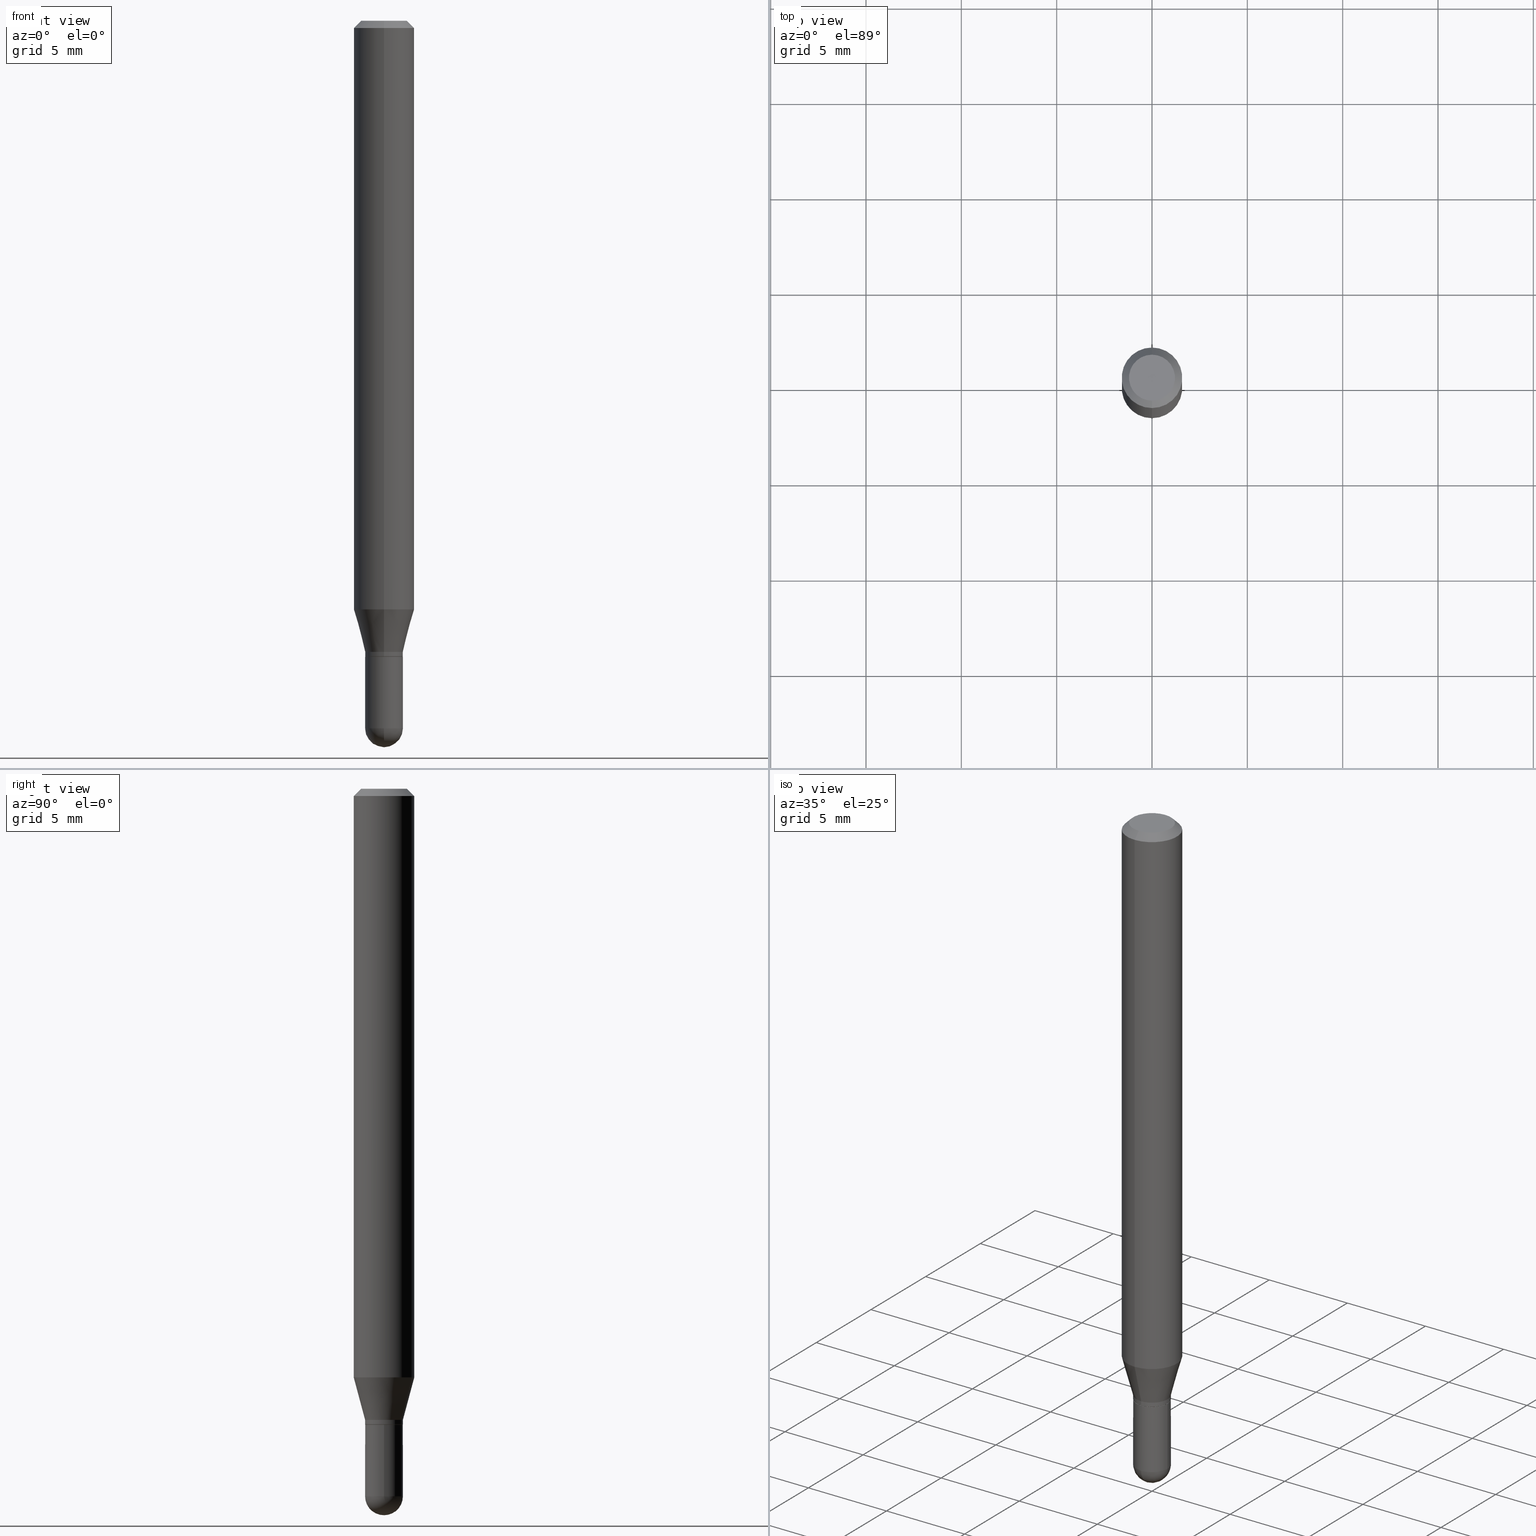
[diagram: canonical four-view strip — front | top / right | iso, engineering-drawing reading convention]
A machine part, canonical four-view strip (front | top / right | iso — engineering-drawing reading convention). The complete STEP part file that produces these views, byte-faithful:
ISO-10303-21;
HEADER;
FILE_DESCRIPTION (( 'STEP AP203' ),
    '1' );
FILE_NAME ('39510.STEP',
    '2024-03-08T12:51:19',
    ( '' ),
    ( '' ),
    'SwSTEP 2.0',
    'SolidWorks 2023',
    '' );
FILE_SCHEMA (( 'CONFIG_CONTROL_DESIGN' ));
ENDSEC;

DATA;
#1 = LINE ( 'NONE', #320, #234 ) ;
#2 = CIRCLE ( 'NONE', #132, 0.03905000000000000832 ) ;
#3 = VECTOR ( 'NONE', #270, 39.37007874015748143 ) ;
#4 = EDGE_LOOP ( 'NONE', ( #389, #180, #359, #393, #220 ) ) ;
#5 = CYLINDRICAL_SURFACE ( 'NONE', #29, 0.06250000000000001388 ) ;
#6 = DIRECTION ( 'NONE',  ( -2.445707618412851454E-29, 3.491139346140710505E-15, 1.000000000000000000 ) ) ;
#7 = DIRECTION ( 'NONE',  ( 2.445707618412850893E-29, -3.491139346140710505E-15, -1.000000000000000000 ) ) ;
#8 = CARTESIAN_POINT ( 'NONE',  ( 3.211214102976074369E-29, -4.583865961482754014E-15, -1.313000000000000389 ) ) ;
#9 = CARTESIAN_POINT ( 'NONE',  ( 3.572707652396175485E-29, -5.100879661982893620E-15, -1.460950000000000193 ) ) ;
#10 = PRODUCT_RELATED_PRODUCT_CATEGORY ( 'detail', '', ( #209 ) ) ;
#11 = ORIENTED_EDGE ( 'NONE', *, *, #112, .F. ) ;
#12 = AXIS2_PLACEMENT_3D ( 'NONE', #53, #439, #14 ) ;
#13 = PERSON_AND_ORGANIZATION_ROLE ( 'design_owner' ) ;
#14 = DIRECTION ( 'NONE',  ( -6.982962677686265922E-15, -1.000000000000000000, 3.483106191921934765E-15 ) ) ;
#15 = ADVANCED_FACE ( 'NONE', ( #129 ), #119, .T. ) ;
#16 = CALENDAR_DATE ( 2024, 8, 3 ) ;
#17 = CC_DESIGN_PERSON_AND_ORGANIZATION_ASSIGNMENT ( #479, #62, ( #483 ) ) ;
#18 = PLANE ( 'NONE',  #417 ) ;
#19 = CARTESIAN_POINT ( 'NONE',  ( -2.726846925636188894E-16, -0.03905000000000491411, -1.312500000000000222 ) ) ;
#20 = CIRCLE ( 'NONE', #318, 0.03855000000000000093 ) ;
#21 = APPROVAL_DATE_TIME ( #382, #332 ) ;
#22 = ADVANCED_FACE ( 'NONE', ( #290 ), #215, .T. ) ;
#23 = SECURITY_CLASSIFICATION_LEVEL ( 'unclassified' ) ;
#24 = DIRECTION ( 'NONE',  ( -6.982962677686265922E-15, -1.000000000000000000, 3.491139346140710505E-15 ) ) ;
#25 = EDGE_CURVE ( 'NONE', #353, #141, #354, .T. ) ;
#26 = ORIENTED_EDGE ( 'NONE', *, *, #90, .T. ) ;
#27 = PERSON_AND_ORGANIZATION_ROLE ( 'classification_officer' ) ;
#28 = VECTOR ( 'NONE', #447, 39.37007874015748854 ) ;
#29 = AXIS2_PLACEMENT_3D ( 'NONE', #475, #444, #159 ) ;
#30 = COORDINATED_UNIVERSAL_TIME_OFFSET ( 5, 0, .BEHIND. ) ;
#31 = MANIFOLD_SOLID_BREP ( 'Body-Move/Copy2[2]', #170 ) ;
#32 = DIRECTION ( 'NONE',  ( 1.000000000000000000, -6.982962677686265922E-15, 4.883557194083112340E-29 ) ) ;
#33 = ORIENTED_EDGE ( 'NONE', *, *, #254, .F. ) ;
#34 = DIRECTION ( 'NONE',  ( -2.445707618412851174E-29, 3.491139346140710505E-15, 1.000000000000000000 ) ) ;
#35 = VERTEX_POINT ( 'NONE', #242 ) ;
#36 = CARTESIAN_POINT ( 'NONE',  ( 2.726846925636807657E-16, 0.03904999999999541477, -1.313000000000000167 ) ) ;
#37 = AXIS2_PLACEMENT_3D ( 'NONE', #160, #249, #48 ) ;
#38 = CONICAL_SURFACE ( 'NONE', #397, 0.06250000000000001388, 0.7853981633974473908 ) ;
#39 = EDGE_LOOP ( 'NONE', ( #113, #98, #432, #297 ) ) ;
#40 = FACE_OUTER_BOUND ( 'NONE', #277, .T. ) ;
#41 = EDGE_CURVE ( 'NONE', #237, #91, #473, .T. ) ;
#42 = ORIENTED_EDGE ( 'NONE', *, *, #202, .T. ) ;
#43 = DIRECTION ( 'NONE',  ( -6.982962677686265922E-15, -1.000000000000000000, 0.000000000000000000 ) ) ;
#44 = FACE_OUTER_BOUND ( 'NONE', #419, .T. ) ;
#45 = EDGE_LOOP ( 'NONE', ( #263, #503, #69, #63 ) ) ;
#46 = CONICAL_SURFACE ( 'NONE', #107, 0.06250000000000001388, 0.7853981633974473908 ) ;
#47 = CARTESIAN_POINT ( 'NONE',  ( 3.316907271900979054E-16, 0.04750000000000004219, -5.575146080993514890E-16 ) ) ;
#48 = DIRECTION ( 'NONE',  ( 1.000000000000000000, -6.982962677686265133E-15, 0.000000000000000000 ) ) ;
#49 = CARTESIAN_POINT ( 'NONE',  ( 3.572707652396175485E-29, -5.100879661982893620E-15, -1.460950000000000193 ) ) ;
#50 = CARTESIAN_POINT ( 'NONE',  ( 3.607780740822223794E-16, 0.03904999999999564375, -1.303000000000000380 ) ) ;
#51 = DIRECTION ( 'NONE',  ( -2.445707618412851174E-29, 3.491139346140710505E-15, 1.000000000000000000 ) ) ;
#52 = DIRECTION ( 'NONE',  ( 0.000000000000000000, 0.000000000000000000, 1.000000000000000000 ) ) ;
#53 = CARTESIAN_POINT ( 'NONE',  ( 3.668561427619468125E-31, -5.236709019211339271E-17, -0.01500000000000078354 ) ) ;
#54 = FACE_OUTER_BOUND ( 'NONE', #351, .T. ) ;
#55 = APPROVAL_STATUS ( 'not_yet_approved' ) ;
#56 = DIRECTION ( 'NONE',  ( -6.982962677686265133E-15, -1.000000000000000000, 0.000000000000000000 ) ) ;
#57 = EDGE_CURVE ( 'NONE', #405, #488, #82, .T. ) ;
#58 = AXIS2_PLACEMENT_3D ( 'NONE', #96, #97, #498 ) ;
#59 = EDGE_CURVE ( 'NONE', #506, #308, #245, .T. ) ;
#60 = CARTESIAN_POINT ( 'NONE',  ( -4.364351673553916694E-16, -0.06250000000000001388, 2.181962091337944559E-16 ) ) ;
#61 = DATE_TIME_ROLE ( 'classification_date' ) ;
#62 = PERSON_AND_ORGANIZATION_ROLE ( 'creator' ) ;
#63 = ORIENTED_EDGE ( 'NONE', *, *, #380, .F. ) ;
#64 = EDGE_CURVE ( 'NONE', #141, #353, #185, .T. ) ;
#65 = DIRECTION ( 'NONE',  ( -6.982962677686265922E-15, -1.000000000000000000, 3.491139346140710900E-15 ) ) ;
#66 = VECTOR ( 'NONE', #232, 39.37007874015748143 ) ;
#67 = APPROVAL ( #495, 'UNSPECIFIED' ) ;
#68 = ADVANCED_FACE ( 'NONE', ( #44 ), #203, .T. ) ;
#69 = ORIENTED_EDGE ( 'NONE', *, *, #41, .F. ) ;
#70 = DIRECTION ( 'NONE',  ( 2.445707618412851174E-29, -3.491139346140710505E-15, -1.000000000000000000 ) ) ;
#71 = VERTEX_POINT ( 'NONE', #194 ) ;
#72 = CARTESIAN_POINT ( 'NONE',  ( -2.691932112247734171E-16, -0.03855000000000458060, -1.313000000000000389 ) ) ;
#73 = ORIENTED_EDGE ( 'NONE', *, *, #64, .T. ) ;
#74 = COORDINATED_UNIVERSAL_TIME_OFFSET ( 5, 0, .BEHIND. ) ;
#75 = CC_DESIGN_PERSON_AND_ORGANIZATION_ASSIGNMENT ( #455, #259, ( #483 ) ) ;
#76 = EDGE_CURVE ( 'NONE', #71, #314, #463, .T. ) ;
#77 = DIRECTION ( 'NONE',  ( 2.445707618412851174E-29, -3.491139346140710505E-15, -1.000000000000000000 ) ) ;
#78 = EDGE_CURVE ( 'NONE', #110, #184, #1, .T. ) ;
#79 = VERTEX_POINT ( 'NONE', #328 ) ;
#80 = DIRECTION ( 'NONE',  ( -6.982962677686265922E-15, -1.000000000000000000, 0.000000000000000000 ) ) ;
#81 = VERTEX_POINT ( 'NONE', #204 ) ;
#82 = LINE ( 'NONE', #331, #335 ) ;
#83 = ORIENTED_EDGE ( 'NONE', *, *, #262, .T. ) ;
#84 = VECTOR ( 'NONE', #6, 39.37007874015748143 ) ;
#85 = CC_DESIGN_PERSON_AND_ORGANIZATION_ASSIGNMENT ( #175, #407, ( #512 ) ) ;
#86 = DIRECTION ( 'NONE',  ( 1.000000000000000000, -6.982962677686266711E-15, 4.876176775795935232E-29 ) ) ;
#87 = DIRECTION ( 'NONE',  ( 1.000000000000000000, -6.982962677686266711E-15, 0.000000000000000000 ) ) ;
#88 = DIRECTION ( 'NONE',  ( -2.445468806185136597E-29, 3.491481338843145583E-15, 1.000000000000000000 ) ) ;
#89 = CARTESIAN_POINT ( 'NONE',  ( -3.773273898774342241E-16, -0.04750000000000004219, -6.175418593736515733E-16 ) ) ;
#90 = EDGE_CURVE ( 'NONE', #472, #71, #403, .T. ) ;
#91 = VERTEX_POINT ( 'NONE', #247 ) ;
#92 = CIRCLE ( 'NONE', #276, 0.06250000000000001388 ) ;
#93 = LOCAL_TIME ( 7, 51, 19.00000000000000000, #74 ) ;
#94 = DESIGN_CONTEXT ( 'detailed design', #293, 'design' ) ;
#95 = CARTESIAN_POINT ( 'NONE',  ( 0.000000000000000000, 0.000000000000000000, 0.000000000000000000 ) ) ;
#96 = CARTESIAN_POINT ( 'NONE',  ( 3.186757026791946487E-29, -4.548954568021346593E-15, -1.303000000000000380 ) ) ;
#97 = DIRECTION ( 'NONE',  ( -2.445707618412851174E-29, 3.491139346140710505E-15, 1.000000000000000000 ) ) ;
#98 = ORIENTED_EDGE ( 'NONE', *, *, #178, .T. ) ;
#99 = AXIS2_PLACEMENT_3D ( 'NONE', #136, #252, #221 ) ;
#100 = CARTESIAN_POINT ( 'NONE',  ( 0.03905000000000000832, -2.726846925636487675E-16, 1.904147030948313202E-30 ) ) ;
#101 = ORIENTED_EDGE ( 'NONE', *, *, #360, .T. ) ;
#102 = CARTESIAN_POINT ( 'NONE',  ( 3.572707652396175485E-29, -5.100879661982893620E-15, -1.460950000000000193 ) ) ;
#103 = CC_DESIGN_DATE_AND_TIME_ASSIGNMENT ( #340, #61, ( #298 ) ) ;
#104 = ORIENTED_EDGE ( 'NONE', *, *, #231, .F. ) ;
#105 = AXIS2_PLACEMENT_3D ( 'NONE', #370, #442, #87 ) ;
#106 = FACE_OUTER_BOUND ( 'NONE', #39, .T. ) ;
#107 = AXIS2_PLACEMENT_3D ( 'NONE', #431, #77, #235 ) ;
#108 = ORIENTED_EDGE ( 'NONE', *, *, #231, .T. ) ;
#109 = CARTESIAN_POINT ( 'NONE',  ( -0.03905000000000000832, 2.774669383143191817E-16, -1.920844152744540988E-30 ) ) ;
#110 = VERTEX_POINT ( 'NONE', #89 ) ;
#111 = DIRECTION ( 'NONE',  ( -6.982962677686265133E-15, -1.000000000000000000, 0.000000000000000000 ) ) ;
#112 = EDGE_CURVE ( 'NONE', #308, #184, #316, .T. ) ;
#113 = ORIENTED_EDGE ( 'NONE', *, *, #202, .F. ) ;
#114 = CARTESIAN_POINT ( 'NONE',  ( 0.000000000000000000, 0.000000000000000000, 0.000000000000000000 ) ) ;
#115 = VECTOR ( 'NONE', #496, 39.37007874015748143 ) ;
#116 = AXIS2_PLACEMENT_3D ( 'NONE', #275, #183, #269 ) ;
#117 = ORIENTED_EDGE ( 'NONE', *, *, #112, .T. ) ;
#118 = CARTESIAN_POINT ( 'NONE',  ( 3.210900542521084585E-29, -4.584314997901050598E-15, -1.313000000000000167 ) ) ;
#119 = CYLINDRICAL_SURFACE ( 'NONE', #490, 0.06250000000000001388 ) ;
#120 = SPHERICAL_SURFACE ( 'NONE', #304, 0.03905000000000012628 ) ;
#121 = CARTESIAN_POINT ( 'NONE',  ( 0.000000000000000000, 0.000000000000000000, 0.000000000000000000 ) ) ;
#122 = AXIS2_PLACEMENT_3D ( 'NONE', #118, #155, #167 ) ;
#123 = DIRECTION ( 'NONE',  ( -2.445707618412851174E-29, 3.491139346140710505E-15, 1.000000000000000000 ) ) ;
#124 = AXIS2_PLACEMENT_3D ( 'NONE', #418, #459, #24 ) ;
#125 = CARTESIAN_POINT ( 'NONE',  ( 3.569368228036930558E-29, -5.105661907733563837E-15, -1.460950000000000193 ) ) ;
#126 = DIRECTION ( 'NONE',  ( 6.982962677686265922E-15, 1.000000000000000000, -3.491139346140710505E-15 ) ) ;
#127 = DIRECTION ( 'NONE',  ( 4.937700262164543309E-15, 0.7071067811865444641, -0.7071067811865505703 ) ) ;
#128 = EDGE_CURVE ( 'NONE', #110, #506, #373, .T. ) ;
#129 = FACE_OUTER_BOUND ( 'NONE', #464, .T. ) ;
#130 = COORDINATED_UNIVERSAL_TIME_OFFSET ( 5, 0, .BEHIND. ) ;
#131 = FACE_OUTER_BOUND ( 'NONE', #344, .T. ) ;
#132 = AXIS2_PLACEMENT_3D ( 'NONE', #102, #148, #272 ) ;
#133 = LOCAL_TIME ( 7, 51, 19.00000000000000000, #130 ) ;
#134 =( NAMED_UNIT ( * ) PLANE_ANGLE_UNIT ( ) SI_UNIT ( $, .RADIAN. ) );
#135 = EDGE_CURVE ( 'NONE', #497, #35, #346, .T. ) ;
#136 = CARTESIAN_POINT ( 'NONE',  ( 3.186757026791946487E-29, -4.548954568021346593E-15, -1.303000000000000380 ) ) ;
#137 = ORIENTED_EDGE ( 'NONE', *, *, #486, .T. ) ;
#138 = CLOSED_SHELL ( 'NONE', ( #443, #219, #253, #368, #481 ) ) ;
#139 = AXIS2_PLACEMENT_3D ( 'NONE', #267, #186, #352 ) ;
#140 = ADVANCED_FACE ( 'NONE', ( #295 ), #224, .T. ) ;
#141 = VERTEX_POINT ( 'NONE', #299 ) ;
#142 = DIRECTION ( 'NONE',  ( -2.445707618412851174E-29, 3.491139346140710505E-15, 1.000000000000000000 ) ) ;
#143 = ORIENTED_EDGE ( 'NONE', *, *, #135, .T. ) ;
#144 = CARTESIAN_POINT ( 'NONE',  ( 3.569368228036930558E-29, -5.105661907733563837E-15, -1.460950000000000193 ) ) ;
#145 = EDGE_LOOP ( 'NONE', ( #511, #469, #435, #227 ) ) ;
#146 = DIRECTION ( 'NONE',  ( -6.982962677686265922E-15, -1.000000000000000000, 0.000000000000000000 ) ) ;
#147 = ORIENTED_EDGE ( 'NONE', *, *, #164, .T. ) ;
#148 = DIRECTION ( 'NONE',  ( -2.445468806185136597E-29, 3.491481338843145583E-15, 1.000000000000000000 ) ) ;
#149 = ORIENTED_EDGE ( 'NONE', *, *, #90, .F. ) ;
#150 = DATE_AND_TIME ( #311, #93 ) ;
#151 = DIRECTION ( 'NONE',  ( -6.982962677686265133E-15, -1.000000000000000000, 3.491139346140709322E-15 ) ) ;
#152 = AXIS2_PLACEMENT_3D ( 'NONE', #485, #239, #342 ) ;
#153 = AXIS2_PLACEMENT_3D ( 'NONE', #326, #210, #378 ) ;
#154 = ADVANCED_BREP_SHAPE_REPRESENTATION ( '39510', ( #190, #31, #425 ), #374 ) ;
#155 = DIRECTION ( 'NONE',  ( -2.445468806185136597E-29, 3.491481338843145583E-15, 1.000000000000000000 ) ) ;
#156 = APPROVAL ( #55, 'UNSPECIFIED' ) ;
#157 = CARTESIAN_POINT ( 'NONE',  ( 3.186757026791946487E-29, -4.548954568021346593E-15, -1.303000000000000380 ) ) ;
#158 = CARTESIAN_POINT ( 'NONE',  ( 0.000000000000000000, 0.000000000000000000, 0.000000000000000000 ) ) ;
#159 = DIRECTION ( 'NONE',  ( -6.982962677686265133E-15, -1.000000000000000000, 3.491139346140710505E-15 ) ) ;
#160 = CARTESIAN_POINT ( 'NONE',  ( 3.572707652396175485E-29, -5.100879661982893620E-15, -1.460950000000000193 ) ) ;
#161 = DIRECTION ( 'NONE',  ( -2.445468806185136597E-29, 3.491481338843145583E-15, 1.000000000000000000 ) ) ;
#162 = AXIS2_PLACEMENT_3D ( 'NONE', #288, #51, #201 ) ;
#163 = EDGE_CURVE ( 'NONE', #488, #314, #386, .T. ) ;
#164 = EDGE_CURVE ( 'NONE', #472, #488, #250, .T. ) ;
#165 = DIRECTION ( 'NONE',  ( -4.851104656540959542E-15, -0.7071067811865493491, -0.7071067811865456854 ) ) ;
#166 = AXIS2_PLACEMENT_3D ( 'NONE', #213, #379, #43 ) ;
#167 = DIRECTION ( 'NONE',  ( 1.000000000000000000, -6.982962677686266711E-15, 0.000000000000000000 ) ) ;
#168 = DATE_AND_TIME ( #16, #356 ) ;
#169 = APPLICATION_PROTOCOL_DEFINITION ( 'international standard', 'config_control_design', 1994, #494 ) ;
#170 = CLOSED_SHELL ( 'NONE', ( #285, #22, #212, #15, #140, #68, #348, #280, #471, #445, #410, #208 ) ) ;
#171 = FACE_OUTER_BOUND ( 'NONE', #476, .T. ) ;
#172 = CIRCLE ( 'NONE', #404, 0.03905000000000000832 ) ;
#173 = CC_DESIGN_DATE_AND_TIME_ASSIGNMENT ( #451, #337, ( #512 ) ) ;
#174 = EDGE_CURVE ( 'NONE', #79, #278, #347, .T. ) ;
#175 = PERSON_AND_ORGANIZATION ( #478, #251 ) ;
#176 = PERSON_AND_ORGANIZATION ( #478, #251 ) ;
#177 = PERSON_AND_ORGANIZATION ( #478, #251 ) ;
#178 = EDGE_CURVE ( 'NONE', #35, #405, #424, .T. ) ;
#179 = VECTOR ( 'NONE', #306, 39.37007874015748143 ) ;
#180 = ORIENTED_EDGE ( 'NONE', *, *, #307, .T. ) ;
#181 = LINE ( 'NONE', #317, #179 ) ;
#182 = ORIENTED_EDGE ( 'NONE', *, *, #41, .T. ) ;
#183 = DIRECTION ( 'NONE',  ( -2.445707618412851174E-29, 3.491139346140710505E-15, 1.000000000000000000 ) ) ;
#184 = VERTEX_POINT ( 'NONE', #361 ) ;
#185 = CIRCLE ( 'NONE', #105, 0.03905000000000000138 ) ;
#186 = DIRECTION ( 'NONE',  ( -2.445707618412851174E-29, 3.491139346140710505E-15, 1.000000000000000000 ) ) ;
#187 = AXIS2_PLACEMENT_3D ( 'NONE', #121, #88, #86 ) ;
#188 = CARTESIAN_POINT ( 'NONE',  ( 2.756905814749515687E-16, 0.03854999999999541432, -1.313000000000000389 ) ) ;
#189 = ORIENTED_EDGE ( 'NONE', *, *, #436, .F. ) ;
#190 = MANIFOLD_SOLID_BREP ( 'Body-Move/Copy2[1]', #138 ) ;
#191 = FACE_OUTER_BOUND ( 'NONE', #426, .T. ) ;
#192 = ORIENTED_EDGE ( 'NONE', *, *, #395, .F. ) ;
#193 = CARTESIAN_POINT ( 'NONE',  ( 3.209991249166868059E-29, -4.582120391809683524E-15, -1.312500000000000222 ) ) ;
#194 = CARTESIAN_POINT ( 'NONE',  ( 4.440892098500920012E-16, 0.06249999999999571176, -1.215483408562511247 ) ) ;
#195 = AXIS2_PLACEMENT_3D ( 'NONE', #434, #394, #151 ) ;
#196 = CC_DESIGN_APPROVAL ( #332, ( #483 ) ) ;
#197 = ORIENTED_EDGE ( 'NONE', *, *, #25, .T. ) ;
#198 = DIRECTION ( 'NONE',  ( 1.000000000000000000, -6.982962677686265133E-15, 0.000000000000000000 ) ) ;
#199 = DIRECTION ( 'NONE',  ( -2.445707618412851454E-29, 3.491139346140710505E-15, 1.000000000000000000 ) ) ;
#200 =( NAMED_UNIT ( * ) SI_UNIT ( $, .STERADIAN. ) SOLID_ANGLE_UNIT ( ) );
#201 = DIRECTION ( 'NONE',  ( -6.982962677686265922E-15, -1.000000000000000000, 4.370956789862821150E-15 ) ) ;
#202 = EDGE_CURVE ( 'NONE', #35, #472, #465, .T. ) ;
#203 = CONICAL_SURFACE ( 'NONE', #411, 0.03905000000000019567, 0.2617993877991500740 ) ;
#204 = CARTESIAN_POINT ( 'NONE',  ( -0.03905000000000000832, -4.565130391627653569E-15, -1.460950000000000193 ) ) ;
#205 = CIRCLE ( 'NONE', #116, 0.06250000000000000000 ) ;
#206 = CC_DESIGN_SECURITY_CLASSIFICATION ( #298, ( #483 ) ) ;
#207 = DIMENSIONAL_EXPONENTS ( 1.000000000000000000, 0.000000000000000000, 0.000000000000000000, 0.000000000000000000, 0.000000000000000000, 0.000000000000000000, 0.000000000000000000 ) ;
#208 = ADVANCED_FACE ( 'NONE', ( #106 ), #309, .T. ) ;
#209 = PRODUCT ( '39510', '39510', '', ( #446 ) ) ;
#210 = DIRECTION ( 'NONE',  ( -2.445707618412851174E-29, 3.491139346140710505E-15, 1.000000000000000000 ) ) ;
#211 = EDGE_CURVE ( 'NONE', #314, #71, #205, .T. ) ;
#212 = ADVANCED_FACE ( 'NONE', ( #312 ), #38, .T. ) ;
#213 = CARTESIAN_POINT ( 'NONE',  ( 3.569368228036930558E-29, -5.105661907733563837E-15, -1.460950000000000193 ) ) ;
#214 = CALENDAR_DATE ( 2024, 8, 3 ) ;
#215 = CONICAL_SURFACE ( 'NONE', #456, 0.03855000000000000093, 0.7853981633974739252 ) ;
#216 = DIRECTION ( 'NONE',  ( -2.445707618412851174E-29, 3.491139346140710505E-15, 1.000000000000000000 ) ) ;
#217 = CIRCLE ( 'NONE', #153, 0.03905000000000019567 ) ;
#218 = CARTESIAN_POINT ( 'NONE',  ( -2.726846925636181991E-16, -0.03905000000000474758, -1.303000000000000380 ) ) ;
#219 = ADVANCED_FACE ( 'NONE', ( #392 ), #350, .T. ) ;
#220 = ORIENTED_EDGE ( 'NONE', *, *, #25, .F. ) ;
#221 = DIRECTION ( 'NONE',  ( -6.982962677686265922E-15, -1.000000000000000000, 0.000000000000000000 ) ) ;
#222 = EDGE_CURVE ( 'NONE', #238, #405, #181, .T. ) ;
#223 = ORIENTED_EDGE ( 'NONE', *, *, #222, .T. ) ;
#224 = CONICAL_SURFACE ( 'NONE', #58, 0.03905000000000019567, 0.2617993877991500740 ) ;
#225 = AXIS2_PLACEMENT_3D ( 'NONE', #49, #161, #246 ) ;
#226 = CARTESIAN_POINT ( 'NONE',  ( 3.668561427619468125E-31, -5.236709019211339271E-17, -0.01500000000000078354 ) ) ;
#227 = ORIENTED_EDGE ( 'NONE', *, *, #59, .F. ) ;
#228 = CARTESIAN_POINT ( 'NONE',  ( 2.774669383143204636E-16, 0.03905000000000019567, -1.363289914667954420E-16 ) ) ;
#229 = EDGE_CURVE ( 'NONE', #81, #353, #398, .T. ) ;
#230 = ORIENTED_EDGE ( 'NONE', *, *, #262, .F. ) ;
#231 = EDGE_CURVE ( 'NONE', #506, #110, #491, .T. ) ;
#232 = DIRECTION ( 'NONE',  ( -2.445707618412851454E-29, 3.491139346140710505E-15, 1.000000000000000000 ) ) ;
#233 = ORIENTED_EDGE ( 'NONE', *, *, #360, .F. ) ;
#234 = VECTOR ( 'NONE', #165, 39.37007874015748143 ) ;
#235 = DIRECTION ( 'NONE',  ( 6.982962677686265922E-15, 1.000000000000000000, -3.483106191921934765E-15 ) ) ;
#236 = CIRCLE ( 'NONE', #225, 0.03905000000000000832 ) ;
#237 = VERTEX_POINT ( 'NONE', #429 ) ;
#238 = VERTEX_POINT ( 'NONE', #72 ) ;
#239 = DIRECTION ( 'NONE',  ( -2.445707618412851174E-29, 3.491139346140710505E-15, 1.000000000000000000 ) ) ;
#240 = CARTESIAN_POINT ( 'NONE',  ( 4.440892098500924943E-16, 0.06249999999999995837, -0.01500000000000100038 ) ) ;
#241 = APPROVAL_PERSON_ORGANIZATION ( #493, #332, #257 ) ;
#242 = CARTESIAN_POINT ( 'NONE',  ( 2.774669383143515743E-16, 0.03904999999999547722, -1.312500000000000222 ) ) ;
#243 = DIRECTION ( 'NONE',  ( -6.982962677686265922E-15, -1.000000000000000000, 0.000000000000000000 ) ) ;
#244 = APPROVAL_DATE_TIME ( #168, #156 ) ;
#245 = LINE ( 'NONE', #409, #387 ) ;
#246 = DIRECTION ( 'NONE',  ( 1.000000000000000000, -6.982962677686265133E-15, 0.000000000000000000 ) ) ;
#247 = CARTESIAN_POINT ( 'NONE',  ( 2.774669383143552228E-16, 0.03904999999999496374, -1.460950000000000193 ) ) ;
#248 = APPLICATION_PROTOCOL_DEFINITION ( 'international standard', 'config_control_design', 1994, #293 ) ;
#249 = DIRECTION ( 'NONE',  ( -2.445468806185136597E-29, 3.491481338843145583E-15, 1.000000000000000000 ) ) ;
#250 = CIRCLE ( 'NONE', #99, 0.03905000000000019567 ) ;
#251 = ORGANIZATION ( 'UNSPECIFIED', 'UNSPECIFIED', '' ) ;
#252 = DIRECTION ( 'NONE',  ( -2.445707618412851174E-29, 3.491139346140710505E-15, 1.000000000000000000 ) ) ;
#253 = ADVANCED_FACE ( 'NONE', ( #191 ), #363, .F. ) ;
#254 = EDGE_CURVE ( 'NONE', #238, #497, #20, .T. ) ;
#255 = CARTESIAN_POINT ( 'NONE',  ( 2.739142246355506265E-16, 0.03854999999999541432, -1.313000000000000389 ) ) ;
#256 = DIRECTION ( 'NONE',  ( -2.445468806185136597E-29, 3.491481338843145583E-15, 1.000000000000000000 ) ) ;
#257 = APPROVAL_ROLE ( '' ) ;
#258 = DIRECTION ( 'NONE',  ( -2.445707618412851454E-29, 3.491139346140710505E-15, 1.000000000000000000 ) ) ;
#259 = PERSON_AND_ORGANIZATION_ROLE ( 'design_supplier' ) ;
#260 = AXIS2_PLACEMENT_3D ( 'NONE', #95, #256, #466 ) ;
#261 = CC_DESIGN_APPROVAL ( #156, ( #512 ) ) ;
#262 = EDGE_CURVE ( 'NONE', #91, #81, #2, .T. ) ;
#263 = ORIENTED_EDGE ( 'NONE', *, *, #174, .F. ) ;
#264 = ORIENTED_EDGE ( 'NONE', *, *, #163, .T. ) ;
#265 = DIRECTION ( 'NONE',  ( -2.445468806185136877E-29, 3.491481338843145188E-15, 1.000000000000000000 ) ) ;
#266 = ORIENTED_EDGE ( 'NONE', *, *, #135, .F. ) ;
#267 = CARTESIAN_POINT ( 'NONE',  ( 0.000000000000000000, 0.000000000000000000, 0.000000000000000000 ) ) ;
#268 = ORIENTED_EDGE ( 'NONE', *, *, #421, .F. ) ;
#269 = DIRECTION ( 'NONE',  ( -6.982962677686265922E-15, -1.000000000000000000, 4.370956789862821150E-15 ) ) ;
#270 = DIRECTION ( 'NONE',  ( -2.445468806185136877E-29, 3.491481338843145188E-15, 1.000000000000000000 ) ) ;
#271 = ORIENTED_EDGE ( 'NONE', *, *, #76, .T. ) ;
#272 = DIRECTION ( 'NONE',  ( 1.000000000000000000, -6.982962677686265133E-15, 0.000000000000000000 ) ) ;
#273 = LENGTH_MEASURE_WITH_UNIT ( LENGTH_MEASURE( 0.02539999999999999897 ), #508 );
#274 = ORIENTED_EDGE ( 'NONE', *, *, #59, .T. ) ;
#275 = CARTESIAN_POINT ( 'NONE',  ( 2.972717032375753484E-29, -4.243421952213807454E-15, -1.215483408562511025 ) ) ;
#276 = AXIS2_PLACEMENT_3D ( 'NONE', #226, #302, #462 ) ;
#277 = EDGE_LOOP ( 'NONE', ( #364, #104, #274, #117 ) ) ;
#278 = VERTEX_POINT ( 'NONE', #502 ) ;
#279 = DIRECTION ( 'NONE',  ( -2.445707618412851174E-29, 3.491139346140710505E-15, 1.000000000000000000 ) ) ;
#280 = ADVANCED_FACE ( 'NONE', ( #40 ), #46, .T. ) ;
#281 = CARTESIAN_POINT ( 'NONE',  ( 3.569368228036930558E-29, -5.105661907733563837E-15, -1.460950000000000193 ) ) ;
#282 = CIRCLE ( 'NONE', #388, 0.03855000000000000093 ) ;
#283 = DIRECTION ( 'NONE',  ( 7.105427357601000281E-15, 1.000000000000000000, 0.000000000000000000 ) ) ;
#284 = DIRECTION ( 'NONE',  ( -6.982962677686265133E-15, -1.000000000000000000, 3.491139346140710505E-15 ) ) ;
#285 = ADVANCED_FACE ( 'NONE', ( #470 ), #423, .T. ) ;
#286 = FACE_OUTER_BOUND ( 'NONE', #440, .T. ) ;
#287 = CARTESIAN_POINT ( 'NONE',  ( 0.000000000000000000, 0.000000000000000000, 0.000000000000000000 ) ) ;
#288 = CARTESIAN_POINT ( 'NONE',  ( 2.972717032375753484E-29, -4.243421952213807454E-15, -1.215483408562511025 ) ) ;
#289 = COORDINATED_UNIVERSAL_TIME_OFFSET ( 5, 0, .BEHIND. ) ;
#290 = FACE_OUTER_BOUND ( 'NONE', #477, .T. ) ;
#291 = CIRCLE ( 'NONE', #474, 0.03905000000000019567 ) ;
#292 = CALENDAR_DATE ( 2024, 8, 3 ) ;
#293 = APPLICATION_CONTEXT ( 'configuration controlled 3d designs of mechanical parts and assemblies' ) ;
#294 = CARTESIAN_POINT ( 'NONE',  ( 3.211214102976074369E-29, -4.583865961482754014E-15, -1.313000000000000389 ) ) ;
#295 = FACE_OUTER_BOUND ( 'NONE', #396, .T. ) ;
#296 = EDGE_CURVE ( 'NONE', #184, #308, #92, .T. ) ;
#297 = ORIENTED_EDGE ( 'NONE', *, *, #164, .F. ) ;
#298 = SECURITY_CLASSIFICATION ( '', '', #23 ) ;
#299 = CARTESIAN_POINT ( 'NONE',  ( 0.03905000000000000138, -4.856999690464699711E-15, -1.313000000000000167 ) ) ;
#300 = ORIENTED_EDGE ( 'NONE', *, *, #174, .T. ) ;
#301 = ORIENTED_EDGE ( 'NONE', *, *, #64, .F. ) ;
#302 = DIRECTION ( 'NONE',  ( -2.445707618412851174E-29, 3.491139346140710505E-15, 1.000000000000000000 ) ) ;
#303 = ORIENTED_EDGE ( 'NONE', *, *, #422, .T. ) ;
#304 = AXIS2_PLACEMENT_3D ( 'NONE', #281, #441, #243 ) ;
#305 = LOCAL_TIME ( 7, 51, 19.00000000000000000, #413 ) ;
#306 = DIRECTION ( 'NONE',  ( -4.937700262164674260E-15, -0.7071067811865632269, 0.7071067811865319186 ) ) ;
#307 = EDGE_CURVE ( 'NONE', #81, #278, #172, .T. ) ;
#308 = VERTEX_POINT ( 'NONE', #240 ) ;
#309 = CYLINDRICAL_SURFACE ( 'NONE', #139, 0.03905000000000019567 ) ;
#310 = ORIENTED_EDGE ( 'NONE', *, *, #222, .F. ) ;
#311 = CALENDAR_DATE ( 2024, 8, 3 ) ;
#312 = FACE_OUTER_BOUND ( 'NONE', #145, .T. ) ;
#313 = CARTESIAN_POINT ( 'NONE',  ( 3.840629472727450339E-16, 0.04750000000000004219, -9.492000972570193079E-16 ) ) ;
#314 = VERTEX_POINT ( 'NONE', #366 ) ;
#315 = APPROVAL_DATE_TIME ( #150, #67 ) ;
#316 = CIRCLE ( 'NONE', #12, 0.06250000000000001388 ) ;
#317 = CARTESIAN_POINT ( 'NONE',  ( -2.691932112247734171E-16, -0.03855000000000458060, -1.313000000000000389 ) ) ;
#318 = AXIS2_PLACEMENT_3D ( 'NONE', #468, #390, #111 ) ;
#319 = LOCAL_TIME ( 7, 51, 19.00000000000000000, #30 ) ;
#320 = CARTESIAN_POINT ( 'NONE',  ( -4.287811248607204268E-16, -0.06250000000000006939, -0.01500000000000056496 ) ) ;
#321 = DIRECTION ( 'NONE',  ( -2.445707618412851174E-29, 3.491139346140710505E-15, 1.000000000000000000 ) ) ;
#322 = DIRECTION ( 'NONE',  ( -2.445707618412851174E-29, 3.491139346140710505E-15, 1.000000000000000000 ) ) ;
#323 = DIRECTION ( 'NONE',  ( -6.982962677686265922E-15, -1.000000000000000000, 0.000000000000000000 ) ) ;
#324 = CYLINDRICAL_SURFACE ( 'NONE', #187, 0.03905000000000000832 ) ;
#325 = CARTESIAN_POINT ( 'NONE',  ( 3.186757026791946487E-29, -4.548954568021346593E-15, -1.303000000000000380 ) ) ;
#326 = CARTESIAN_POINT ( 'NONE',  ( 3.209991249166868059E-29, -4.582120391809683524E-15, -1.312500000000000222 ) ) ;
#327 = VECTOR ( 'NONE', #258, 39.37007874015748143 ) ;
#328 = CARTESIAN_POINT ( 'NONE',  ( 3.663194072738837225E-29, -5.244395376890724291E-15, -1.500000000000000444 ) ) ;
#329 = DIRECTION ( 'NONE',  ( 1.000000000000000000, -7.105427357601001070E-15, 4.926315508542082329E-29 ) ) ;
#330 = PERSON_AND_ORGANIZATION ( #478, #251 ) ;
#331 = CARTESIAN_POINT ( 'NONE',  ( -2.726846925636500494E-16, -0.03905000000000019567, 1.363289914667954420E-16 ) ) ;
#332 = APPROVAL ( #452, 'UNSPECIFIED' ) ;
#333 = UNCERTAINTY_MEASURE_WITH_UNIT (LENGTH_MEASURE( 1.000000000000000082E-05 ), #399, 'distance_accuracy_value', 'NONE');
#334 = DIRECTION ( 'NONE',  ( -1.807323732225328562E-15, -0.2588190451025179639, 0.9659258262890690894 ) ) ;
#335 = VECTOR ( 'NONE', #199, 39.37007874015748143 ) ;
#336 = VECTOR ( 'NONE', #265, 39.37007874015748143 ) ;
#337 = DATE_TIME_ROLE ( 'creation_date' ) ;
#338 = CC_DESIGN_APPROVAL ( #67, ( #298 ) ) ;
#339 = LINE ( 'NONE', #453, #327 ) ;
#340 = DATE_AND_TIME ( #420, #319 ) ;
#341 = LINE ( 'NONE', #60, #84 ) ;
#342 = DIRECTION ( 'NONE',  ( -6.982962677686265133E-15, -1.000000000000000000, 3.491139346140709322E-15 ) ) ;
#343 = LINE ( 'NONE', #100, #3 ) ;
#344 = EDGE_LOOP ( 'NONE', ( #108, #400 ) ) ;
#345 = APPROVAL_ROLE ( '' ) ;
#346 = LINE ( 'NONE', #255, #115 ) ;
#347 = CIRCLE ( 'NONE', #166, 0.03905000000000012628 ) ;
#348 = ADVANCED_FACE ( 'NONE', ( #402 ), #5, .T. ) ;
#349 = EDGE_LOOP ( 'NONE', ( #509, #42, #233, #416 ) ) ;
#350 = SPHERICAL_SURFACE ( 'NONE', #433, 0.03905000000000012628 ) ;
#351 = EDGE_LOOP ( 'NONE', ( #189, #300, #428, #230 ) ) ;
#352 = DIRECTION ( 'NONE',  ( -6.982962677686265922E-15, -1.000000000000000000, 3.491139346140710900E-15 ) ) ;
#353 = VERTEX_POINT ( 'NONE', #482 ) ;
#354 = CIRCLE ( 'NONE', #122, 0.03905000000000000138 ) ;
#355 = AXIS2_PLACEMENT_3D ( 'NONE', #125, #329, #283 ) ;
#356 = LOCAL_TIME ( 7, 51, 19.00000000000000000, #289 ) ;
#357 = DIRECTION ( 'NONE',  ( 2.438088387897960049E-29, -3.491481338843145188E-15, -1.000000000000000000 ) ) ;
#358 = CC_DESIGN_PERSON_AND_ORGANIZATION_ASSIGNMENT ( #487, #13, ( #209 ) ) ;
#359 = ORIENTED_EDGE ( 'NONE', *, *, #380, .T. ) ;
#360 = EDGE_CURVE ( 'NONE', #488, #472, #291, .T. ) ;
#361 = CARTESIAN_POINT ( 'NONE',  ( -4.364351673553913736E-16, -0.06250000000000006939, -0.01500000000000056496 ) ) ;
#362 = ORIENTED_EDGE ( 'NONE', *, *, #486, .F. ) ;
#363 = PLANE ( 'NONE',  #365 ) ;
#364 = ORIENTED_EDGE ( 'NONE', *, *, #78, .F. ) ;
#365 = AXIS2_PLACEMENT_3D ( 'NONE', #36, #357, #507 ) ;
#366 = CARTESIAN_POINT ( 'NONE',  ( -4.364351673553621364E-16, -0.06250000000000427436, -1.215483408562510803 ) ) ;
#367 = ORIENTED_EDGE ( 'NONE', *, *, #458, .F. ) ;
#368 = ADVANCED_FACE ( 'NONE', ( #54 ), #120, .T. ) ;
#369 = DIRECTION ( 'NONE',  ( -2.445468806185136597E-29, 3.491481338843145583E-15, 1.000000000000000000 ) ) ;
#370 = CARTESIAN_POINT ( 'NONE',  ( 3.210900542521084585E-29, -4.584314997901050598E-15, -1.313000000000000167 ) ) ;
#371 = APPROVAL_ROLE ( '' ) ;
#372 = EDGE_LOOP ( 'NONE', ( #362, #271, #303, #11 ) ) ;
#373 = CIRCLE ( 'NONE', #152, 0.04750000000000004219 ) ;
#374 =( GEOMETRIC_REPRESENTATION_CONTEXT ( 3 ) GLOBAL_UNCERTAINTY_ASSIGNED_CONTEXT ( ( #333 ) ) GLOBAL_UNIT_ASSIGNED_CONTEXT ( ( #399, #134, #200 ) ) REPRESENTATION_CONTEXT ( 'NONE', 'WORKASPACE' ) );
#375 = ORIENTED_EDGE ( 'NONE', *, *, #229, .T. ) ;
#376 = DIRECTION ( 'NONE',  ( 1.000000000000000000, 0.000000000000000000, 0.000000000000000000 ) ) ;
#377 = SHAPE_DEFINITION_REPRESENTATION ( #384, #154 ) ;
#378 = DIRECTION ( 'NONE',  ( -6.982962677686265922E-15, -1.000000000000000000, 0.000000000000000000 ) ) ;
#379 = DIRECTION ( 'NONE',  ( -1.000000000000000000, 6.982962677686265922E-15, -4.883557194083112340E-29 ) ) ;
#380 = EDGE_CURVE ( 'NONE', #278, #237, #236, .T. ) ;
#381 = AXIS2_PLACEMENT_3D ( 'NONE', #294, #415, #56 ) ;
#382 = DATE_AND_TIME ( #214, #305 ) ;
#383 = DIRECTION ( 'NONE',  ( -6.982962677686265133E-15, -1.000000000000000000, 0.000000000000000000 ) ) ;
#384 = PRODUCT_DEFINITION_SHAPE ( 'NONE', 'NONE',  #512 ) ;
#385 = ORIENTED_EDGE ( 'NONE', *, *, #296, .F. ) ;
#386 = LINE ( 'NONE', #454, #449 ) ;
#387 = VECTOR ( 'NONE', #127, 39.37007874015748143 ) ;
#388 = AXIS2_PLACEMENT_3D ( 'NONE', #437, #216, #383 ) ;
#389 = ORIENTED_EDGE ( 'NONE', *, *, #229, .F. ) ;
#390 = DIRECTION ( 'NONE',  ( -2.445707618412851174E-29, 3.491139346140710505E-15, 1.000000000000000000 ) ) ;
#391 = EDGE_LOOP ( 'NONE', ( #33, #268 ) ) ;
#392 = FACE_OUTER_BOUND ( 'NONE', #45, .T. ) ;
#393 = ORIENTED_EDGE ( 'NONE', *, *, #458, .T. ) ;
#394 = DIRECTION ( 'NONE',  ( -2.445707618412851174E-29, 3.491139346140710505E-15, 1.000000000000000000 ) ) ;
#395 = EDGE_CURVE ( 'NONE', #405, #35, #217, .T. ) ;
#396 = EDGE_LOOP ( 'NONE', ( #101, #26, #460, #401 ) ) ;
#397 = AXIS2_PLACEMENT_3D ( 'NONE', #427, #70, #510 ) ;
#398 = LINE ( 'NONE', #109, #336 ) ;
#399 =( CONVERSION_BASED_UNIT ( 'INCH', #273 ) LENGTH_UNIT ( ) NAMED_UNIT ( #207 ) );
#400 = ORIENTED_EDGE ( 'NONE', *, *, #128, .T. ) ;
#401 = ORIENTED_EDGE ( 'NONE', *, *, #163, .F. ) ;
#402 = FACE_OUTER_BOUND ( 'NONE', #372, .T. ) ;
#403 = LINE ( 'NONE', #484, #28 ) ;
#404 = AXIS2_PLACEMENT_3D ( 'NONE', #9, #369, #198 ) ;
#405 = VERTEX_POINT ( 'NONE', #19 ) ;
#406 = FACE_OUTER_BOUND ( 'NONE', #391, .T. ) ;
#407 = PERSON_AND_ORGANIZATION_ROLE ( 'creator' ) ;
#408 = DIRECTION ( 'NONE',  ( -6.982962677686265922E-15, -1.000000000000000000, 0.000000000000000000 ) ) ;
#409 = CARTESIAN_POINT ( 'NONE',  ( 4.364351673553921131E-16, 0.06249999999999996531, -0.01500000000000100038 ) ) ;
#410 = ADVANCED_FACE ( 'NONE', ( #171 ), #504, .T. ) ;
#411 = AXIS2_PLACEMENT_3D ( 'NONE', #325, #123, #408 ) ;
#412 = AXIS2_PLACEMENT_3D ( 'NONE', #193, #34, #146 ) ;
#413 = COORDINATED_UNIVERSAL_TIME_OFFSET ( 5, 0, .BEHIND. ) ;
#414 = PLANE ( 'NONE',  #124 ) ;
#415 = DIRECTION ( 'NONE',  ( -2.445707618412851174E-29, 3.491139346140710505E-15, 1.000000000000000000 ) ) ;
#416 = ORIENTED_EDGE ( 'NONE', *, *, #57, .F. ) ;
#417 = AXIS2_PLACEMENT_3D ( 'NONE', #47, #7, #126 ) ;
#418 = CARTESIAN_POINT ( 'NONE',  ( 3.211214102976074369E-29, -4.583865961482754014E-15, -1.313000000000000389 ) ) ;
#419 = EDGE_LOOP ( 'NONE', ( #149, #147, #264, #480 ) ) ;
#420 = CALENDAR_DATE ( 2024, 8, 3 ) ;
#421 = EDGE_CURVE ( 'NONE', #497, #238, #282, .T. ) ;
#422 = EDGE_CURVE ( 'NONE', #314, #184, #341, .T. ) ;
#423 = CYLINDRICAL_SURFACE ( 'NONE', #499, 0.03905000000000019567 ) ;
#424 = CIRCLE ( 'NONE', #412, 0.03905000000000019567 ) ;
#425 = AXIS2_PLACEMENT_3D ( 'NONE', #287, #52, #376 ) ;
#426 = EDGE_LOOP ( 'NONE', ( #73, #197 ) ) ;
#427 = CARTESIAN_POINT ( 'NONE',  ( 3.668561427619468125E-31, -5.236709019211339271E-17, -0.01500000000000078354 ) ) ;
#428 = ORIENTED_EDGE ( 'NONE', *, *, #307, .F. ) ;
#429 = CARTESIAN_POINT ( 'NONE',  ( 0.03905000000000000832, -5.115282022505621222E-15, -1.460950000000000193 ) ) ;
#430 = ORIENTED_EDGE ( 'NONE', *, *, #178, .F. ) ;
#431 = CARTESIAN_POINT ( 'NONE',  ( 3.668561427619468125E-31, -5.236709019211339271E-17, -0.01500000000000078354 ) ) ;
#432 = ORIENTED_EDGE ( 'NONE', *, *, #57, .T. ) ;
#433 = AXIS2_PLACEMENT_3D ( 'NONE', #144, #32, #80 ) ;
#434 = CARTESIAN_POINT ( 'NONE',  ( 1.915896369709344109E-44, -2.734857245021408663E-30, -7.833709783153354406E-16 ) ) ;
#435 = ORIENTED_EDGE ( 'NONE', *, *, #296, .T. ) ;
#436 = EDGE_CURVE ( 'NONE', #79, #91, #450, .T. ) ;
#437 = CARTESIAN_POINT ( 'NONE',  ( 3.211214102976074369E-29, -4.583865961482754014E-15, -1.313000000000000389 ) ) ;
#438 = CC_DESIGN_PERSON_AND_ORGANIZATION_ASSIGNMENT ( #176, #27, ( #298 ) ) ;
#439 = DIRECTION ( 'NONE',  ( -2.445707618412851174E-29, 3.491139346140710505E-15, 1.000000000000000000 ) ) ;
#440 = EDGE_LOOP ( 'NONE', ( #83, #375, #301, #367, #182 ) ) ;
#441 = DIRECTION ( 'NONE',  ( 1.000000000000000000, -6.982962677686265922E-15, 4.883557194083112340E-29 ) ) ;
#442 = DIRECTION ( 'NONE',  ( -2.445468806185136597E-29, 3.491481338843145583E-15, 1.000000000000000000 ) ) ;
#443 = ADVANCED_FACE ( 'NONE', ( #286 ), #324, .T. ) ;
#444 = DIRECTION ( 'NONE',  ( -2.445707618412851174E-29, 3.491139346140710505E-15, 1.000000000000000000 ) ) ;
#445 = ADVANCED_FACE ( 'NONE', ( #406 ), #414, .F. ) ;
#446 = MECHANICAL_CONTEXT ( 'NONE', #494, 'mechanical' ) ;
#447 = DIRECTION ( 'NONE',  ( 1.839019923739598738E-15, 0.2588190451025247363, 0.9659258262890673130 ) ) ;
#448 = DIRECTION ( 'NONE',  ( -6.982962677686265133E-15, -1.000000000000000000, 0.000000000000000000 ) ) ;
#449 = VECTOR ( 'NONE', #334, 39.37007874015748854 ) ;
#450 = CIRCLE ( 'NONE', #355, 0.03905000000000012628 ) ;
#451 = DATE_AND_TIME ( #292, #133 ) ;
#452 = APPROVAL_STATUS ( 'not_yet_approved' ) ;
#453 = CARTESIAN_POINT ( 'NONE',  ( 4.440892098500626162E-16, 0.06250000000000001388, -2.181962091337944559E-16 ) ) ;
#454 = CARTESIAN_POINT ( 'NONE',  ( -2.726846925636181991E-16, -0.03905000000000474758, -1.303000000000000380 ) ) ;
#455 = PERSON_AND_ORGANIZATION ( #478, #251 ) ;
#456 = AXIS2_PLACEMENT_3D ( 'NONE', #8, #279, #448 ) ;
#457 = ORIENTED_EDGE ( 'NONE', *, *, #421, .T. ) ;
#458 = EDGE_CURVE ( 'NONE', #237, #141, #343, .T. ) ;
#459 = DIRECTION ( 'NONE',  ( -2.445707618412850893E-29, 3.491139346140710505E-15, 1.000000000000000000 ) ) ;
#460 = ORIENTED_EDGE ( 'NONE', *, *, #211, .F. ) ;
#461 = ORIENTED_EDGE ( 'NONE', *, *, #254, .T. ) ;
#462 = DIRECTION ( 'NONE',  ( -6.982962677686265922E-15, -1.000000000000000000, 3.483106191921934765E-15 ) ) ;
#463 = CIRCLE ( 'NONE', #162, 0.06250000000000000000 ) ;
#464 = EDGE_LOOP ( 'NONE', ( #501, #137, #385, #467 ) ) ;
#465 = LINE ( 'NONE', #228, #66 ) ;
#466 = DIRECTION ( 'NONE',  ( 1.000000000000000000, -6.982962677686266711E-15, 4.876176775795935232E-29 ) ) ;
#467 = ORIENTED_EDGE ( 'NONE', *, *, #422, .F. ) ;
#468 = CARTESIAN_POINT ( 'NONE',  ( 3.211214102976074369E-29, -4.583865961482754014E-15, -1.313000000000000389 ) ) ;
#469 = ORIENTED_EDGE ( 'NONE', *, *, #78, .T. ) ;
#470 = FACE_OUTER_BOUND ( 'NONE', #349, .T. ) ;
#471 = ADVANCED_FACE ( 'NONE', ( #131 ), #18, .F. ) ;
#472 = VERTEX_POINT ( 'NONE', #50 ) ;
#473 = CIRCLE ( 'NONE', #37, 0.03905000000000000832 ) ;
#474 = AXIS2_PLACEMENT_3D ( 'NONE', #157, #321, #323 ) ;
#475 = CARTESIAN_POINT ( 'NONE',  ( 0.000000000000000000, 0.000000000000000000, 0.000000000000000000 ) ) ;
#476 = EDGE_LOOP ( 'NONE', ( #266, #457, #223, #430 ) ) ;
#477 = EDGE_LOOP ( 'NONE', ( #461, #143, #192, #310 ) ) ;
#478 = PERSON ( 'UNSPECIFIED', 'UNSPECIFIED', 'UNSPECIFIED', ('UNSPECIFIED'), ('UNSPECIFIED'), ('UNSPECIFIED') ) ;
#479 = PERSON_AND_ORGANIZATION ( #478, #251 ) ;
#480 = ORIENTED_EDGE ( 'NONE', *, *, #76, .F. ) ;
#481 = ADVANCED_FACE ( 'NONE', ( #489 ), #505, .T. ) ;
#482 = CARTESIAN_POINT ( 'NONE',  ( -0.03905000000000000138, -4.565130391627653569E-15, -1.313000000000000167 ) ) ;
#483 = PRODUCT_DEFINITION_FORMATION_WITH_SPECIFIED_SOURCE ( 'ANY', '', #209, .NOT_KNOWN. ) ;
#484 = CARTESIAN_POINT ( 'NONE',  ( 2.774669383143523138E-16, 0.03904999999999564375, -1.303000000000000380 ) ) ;
#485 = CARTESIAN_POINT ( 'NONE',  ( 1.915896369709344109E-44, -2.734857245021408663E-30, -7.833709783153354406E-16 ) ) ;
#486 = EDGE_CURVE ( 'NONE', #71, #308, #339, .T. ) ;
#487 = PERSON_AND_ORGANIZATION ( #478, #251 ) ;
#488 = VERTEX_POINT ( 'NONE', #218 ) ;
#489 = FACE_OUTER_BOUND ( 'NONE', #4, .T. ) ;
#490 = AXIS2_PLACEMENT_3D ( 'NONE', #158, #322, #284 ) ;
#491 = CIRCLE ( 'NONE', #195, 0.04750000000000004219 ) ;
#492 = APPROVAL_PERSON_ORGANIZATION ( #177, #67, #345 ) ;
#493 = PERSON_AND_ORGANIZATION ( #478, #251 ) ;
#494 = APPLICATION_CONTEXT ( 'configuration controlled 3d designs of mechanical parts and assemblies' ) ;
#495 = APPROVAL_STATUS ( 'not_yet_approved' ) ;
#496 = DIRECTION ( 'NONE',  ( 5.024295867788190974E-15, 0.7071067811865681119, 0.7071067811865270336 ) ) ;
#497 = VERTEX_POINT ( 'NONE', #188 ) ;
#498 = DIRECTION ( 'NONE',  ( -6.982962677686265922E-15, -1.000000000000000000, 0.000000000000000000 ) ) ;
#499 = AXIS2_PLACEMENT_3D ( 'NONE', #114, #142, #65 ) ;
#500 = APPROVAL_PERSON_ORGANIZATION ( #330, #156, #371 ) ;
#501 = ORIENTED_EDGE ( 'NONE', *, *, #211, .T. ) ;
#502 = CARTESIAN_POINT ( 'NONE',  ( -2.726846925636134167E-16, -0.03905000000000517085, -1.460950000000000193 ) ) ;
#503 = ORIENTED_EDGE ( 'NONE', *, *, #436, .T. ) ;
#504 = CONICAL_SURFACE ( 'NONE', #381, 0.03855000000000000093, 0.7853981633974739252 ) ;
#505 = CYLINDRICAL_SURFACE ( 'NONE', #260, 0.03905000000000000832 ) ;
#506 = VERTEX_POINT ( 'NONE', #313 ) ;
#507 = DIRECTION ( 'NONE',  ( -1.000000000000000000, 6.982962677686265922E-15, -4.876176775795935793E-29 ) ) ;
#508 =( LENGTH_UNIT ( ) NAMED_UNIT ( * ) SI_UNIT ( $, .METRE. ) );
#509 = ORIENTED_EDGE ( 'NONE', *, *, #395, .T. ) ;
#510 = DIRECTION ( 'NONE',  ( 6.982962677686265922E-15, 1.000000000000000000, -3.483106191921934765E-15 ) ) ;
#511 = ORIENTED_EDGE ( 'NONE', *, *, #128, .F. ) ;
#512 = PRODUCT_DEFINITION ( 'UNKNOWN', '', #483, #94 ) ;
ENDSEC;
END-ISO-10303-21;
